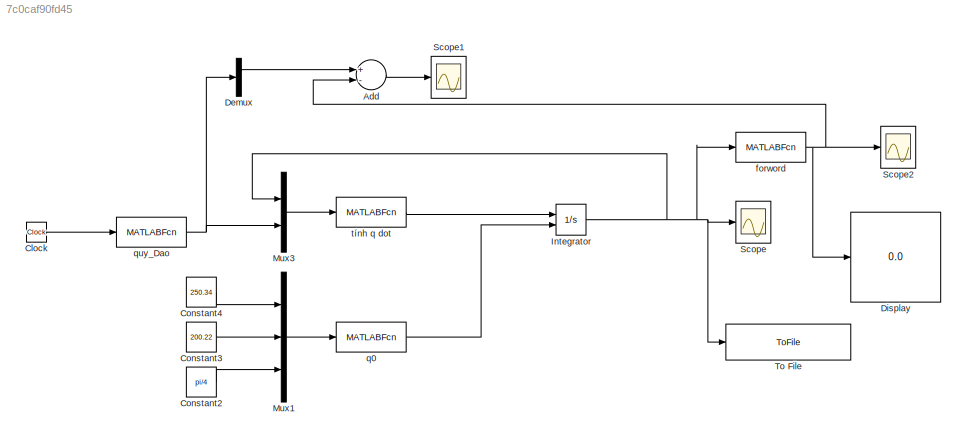
MODEL slx_7c0caf90fd45
KIND model
CONFIG AbsTol = auto
CONFIG EnableMultiTasking = off
CONFIG FixedStep = auto
CONFIG MaxStep = auto
CONFIG MinStep = auto
CONFIG RelTol = 1e-3
CONFIG SampleTimeConstraint = Unconstrained
CONFIG Solver = VariableStepAuto
CONFIG SolverName = VariableStepAuto
CONFIG StartTime = 0.0
CONFIG StopTime = 10
BLOCK [Sum] Add
  InputSameDT = off
  Inputs = +-
  OutDataTypeStr = Inherit: Inherit via internal rule
  Ports = [2, 1]
  SaturateOnIntegerOverflow = off
BLOCK [Clock] Clock
BLOCK [Constant] Constant2
  Value = pi/4
BLOCK [Constant] Constant3
  Value = 200.22
BLOCK [Constant] Constant4
  Value = 250.34
BLOCK [Demux] Demux
  DisplayOption = bar
  Outputs = 2
  Ports = [1, 2]
BLOCK [Display] Display
  Decimation = 3
  Ports = [1]
BLOCK [Integrator] Integrator
  InitialConditionSource = external
  Ports = [2, 1]
BLOCK [Mux] Mux1
  DisplayOption = bar
  Inputs = 3
  Ports = [3, 1]
BLOCK [Mux] Mux3
  DisplayOption = bar
  Inputs = 2
  Ports = [2, 1]
BLOCK [Scope] Scope
  Floating = off
  NumInputPorts = 1
  Ports = [1]
  ScopeSpecificationString = Simulink.scopes.TimeScopeBlockCfg('CurrentConfiguration', extmgr.ConfigurationSet(extmgr.Configuration('Core','General UI',true,'DisplayFullSourceName',true),extmgr.Configuration('Core','Source UI',true),extmgr.Configuration('Sources','WiredSimulink',true),extmgr.Configuration('Visuals','Time Domain',true,'SerializedDisplays',{struct('MinYLimReal','-372.7227','MaxYLimReal','44.46204','YLabelReal',...<+1434ch>
BLOCK [Scope] Scope1
  Floating = off
  NumInputPorts = 1
  Ports = [1]
  ScopeSpecificationString = Simulink.scopes.TimeScopeBlockCfg('CurrentConfiguration', extmgr.ConfigurationSet(extmgr.Configuration('Core','General UI',true,'DisplayFullSourceName',true),extmgr.Configuration('Core','Source UI',true),extmgr.Configuration('Sources','WiredSimulink',true,'DataLoggingVariableName','ScopeData1'),extmgr.Configuration('Visuals','Time Domain',true,'SerializedDisplays',{struct('MinYLimReal','-0.0000000...<+1476ch>
BLOCK [Scope] Scope2
  Floating = off
  NumInputPorts = 1
  Ports = [1]
  ScopeSpecificationString = Simulink.scopes.TimeScopeBlockCfg('CurrentConfiguration', extmgr.ConfigurationSet(extmgr.Configuration('Core','General UI',true,'DisplayFullSourceName',true),extmgr.Configuration('Core','Source UI',true),extmgr.Configuration('Sources','WiredSimulink',true,'DataLoggingVariableName','ScopeData2'),extmgr.Configuration('Visuals','Time Domain',true,'SerializedDisplays',{struct('MinYLimReal','-154.72942...<+1467ch>
BLOCK [ToFile] To File
  Filename = into.mat
  Ports = [1]
BLOCK [MATLABFcn] forword
  MATLABFcn = forward
  OutputDimensions = 3
  Ports = [1, 1]
BLOCK [MATLABFcn] q0
  MATLABFcn = newton_raphson
  OutputDimensions = 3
  Ports = [1, 1]
BLOCK [MATLABFcn] quy_Dao
  MATLABFcn = trajectory_tron
  OutputDimensions = 6
  Ports = [1, 1]
BLOCK [MATLABFcn] tính q dot 
  MATLABFcn = tinh_q_dot
  OutputDimensions = 3
  Ports = [1, 1]
LINE Add:1 -> Scope1:1
LINE Clock:1 -> quy_Dao:1
LINE Constant2:1 -> Mux1:3
LINE Constant3:1 -> Mux1:2
LINE Constant4:1 -> Mux1:1
LINE Demux:1 -> Add:1
NET Integrator:1 -> Mux3:1, Scope:1, To File:1, forword:1
LINE Mux1:1 -> q0:1
LINE Mux3:1 -> tính q dot :1
NET forword:1 -> Add:2, Display:1, Scope2:1
LINE q0:1 -> Integrator:2
NET quy_Dao:1 -> Demux:1, Mux3:2
LINE tính q dot :1 -> Integrator:1
note: NET lines group one-source signal fan-out (src -> all destinations, sorted); 1:1 wires keep LINE
